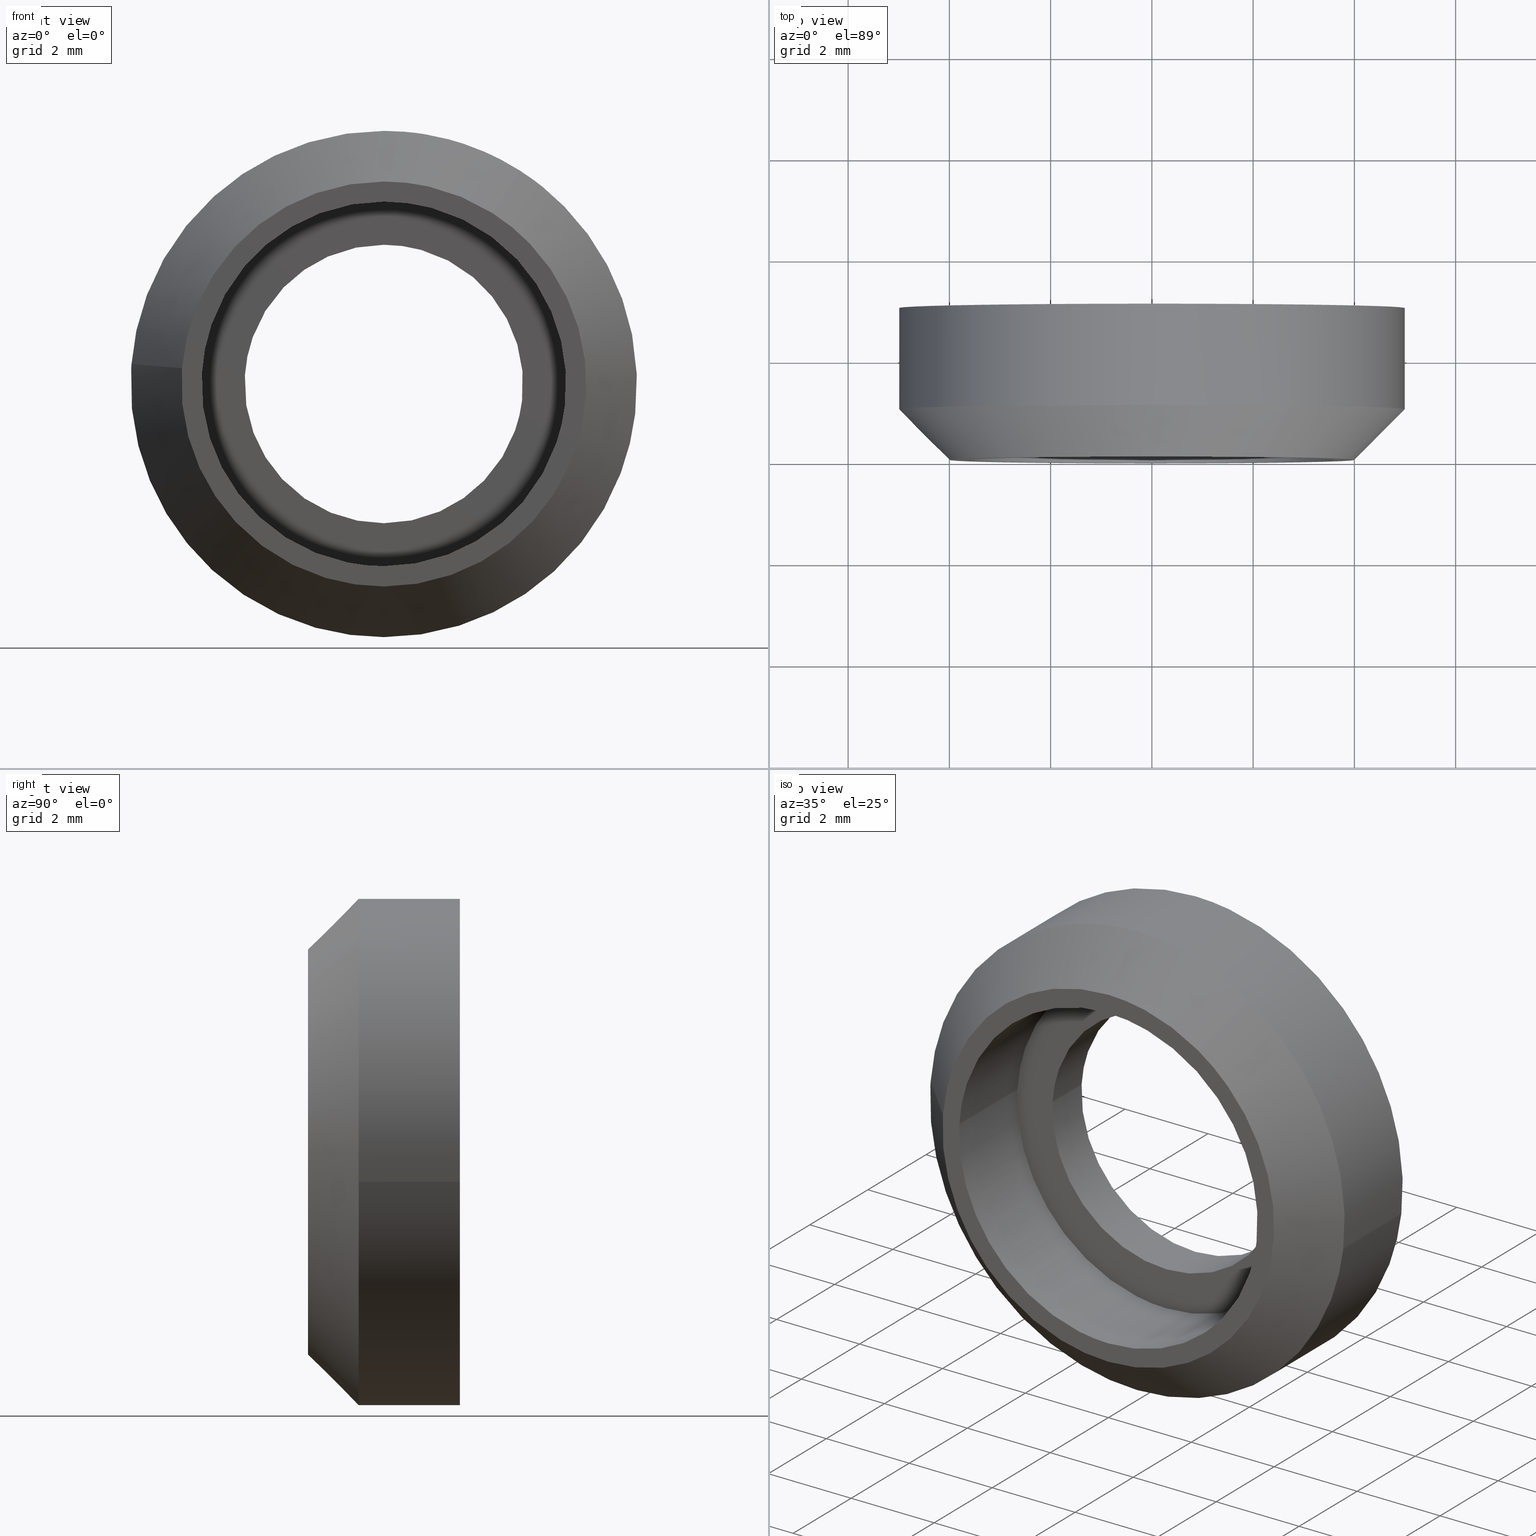
[diagram: canonical four-view strip — front | top / right | iso, engineering-drawing reading convention]
A machine part, canonical four-view strip (front | top / right | iso — engineering-drawing reading convention). The complete STEP part file that produces these views, byte-faithful:
ISO-10303-21;
HEADER;
/****************************************************************
 * Generated by software with PDE/Lib inside                    *
 * PDElib Version 4.4.1-0003, patched  Thursday August 19 11:58 *
 * International Technegroup Inc. (www.iti-oh.com)              *
 ****************************************************************/
FILE_DESCRIPTION((''),'2;1');
FILE_NAME('','2005-10-12T11:50:16',(''),(''),'','CADfix','');
FILE_SCHEMA(('AUTOMOTIVE_DESIGN'));
ENDSEC;
DATA;
#5=APPLICATION_CONTEXT('automotive design');
#6=APPLICATION_PROTOCOL_DEFINITION('Draft International Standard','automotive_design',1998,#5);
#7=PRODUCT_CONTEXT('None',#5,'mechanical');
#8=PRODUCT('facing ring','','None',(#7));
#9=PRODUCT_RELATED_PRODUCT_CATEGORY('part','description',(#8));
#10=PRODUCT_DEFINITION_FORMATION('None','None',#8);
#11=PRODUCT_DEFINITION_CONTEXT('part definition',#5,'design');
#12=PRODUCT_DEFINITION('None','None',#10,#11);
#18=(NAMED_UNIT(*)PLANE_ANGLE_UNIT()SI_UNIT($,.RADIAN.));
#19=DIMENSIONAL_EXPONENTS(0.0,0.0,0.0,0.0,0.0,0.0,0.0);
#20=PLANE_ANGLE_MEASURE_WITH_UNIT(PLANE_ANGLE_MEASURE(0.017453292500000),#18);
#24=(CONVERSION_BASED_UNIT('DEGREE',#20)NAMED_UNIT(#19)PLANE_ANGLE_UNIT());
#28=(NAMED_UNIT(*)SI_UNIT($,.STERADIAN.)SOLID_ANGLE_UNIT());
#32=(LENGTH_UNIT()NAMED_UNIT(*)SI_UNIT(.MILLI.,.METRE.));
#34=UNCERTAINTY_MEASURE_WITH_UNIT(LENGTH_MEASURE(0.001000000000000),#32,'DISTANCE_ACCURACY_VALUE','');
#36=(GEOMETRIC_REPRESENTATION_CONTEXT(3)GLOBAL_UNCERTAINTY_ASSIGNED_CONTEXT((#34))GLOBAL_UNIT_ASSIGNED_CONTEXT((#24,#28,#32))REPRESENTATION_CONTEXT('None','None'));
#37=AXIS2_PLACEMENT_3D('',#38,#39,#40);
#38=CARTESIAN_POINT('',(0.0,0.0,0.0));
#39=DIRECTION('',(0.0,0.0,1.0));
#40=DIRECTION('',(1.0,0.0,0.0));
#41=ADVANCED_BREP_SHAPE_REPRESENTATION('',(#37,#815),#36);
#42=PRODUCT_DEFINITION_SHAPE('','',#12);
#43=SHAPE_DEFINITION_REPRESENTATION(#42,#41);
#44=CARTESIAN_POINT('',(2.730776197500084,1.025000000000000,-0.324594145306086));
#45=CARTESIAN_POINT('',(2.740065942483667,1.025000000000000,-0.246440503754439));
#46=CARTESIAN_POINT('',(2.744870695660134,1.025000000000000,-0.167883483720857));
#47=CARTESIAN_POINT('',(2.912754179380990,1.025000000000000,2.576987211939278));
#48=CARTESIAN_POINT('',(0.167883483720857,1.025000000000000,2.744870695660134));
#49=CARTESIAN_POINT('',(-2.576987211939278,1.025000000000000,2.912754179380990));
#50=CARTESIAN_POINT('',(-2.744870695660133,1.025000000000000,0.167883483720857));
#51=CARTESIAN_POINT('',(2.730776197500084,-0.025625000000000,-0.324594145306086));
#52=CARTESIAN_POINT('',(2.740065942483667,-0.025625000000000,-0.246440503754439));
#53=CARTESIAN_POINT('',(2.744870695660134,-0.025625000000000,-0.167883483720857));
#54=CARTESIAN_POINT('',(2.912754179380990,-0.025625000000000,2.576987211939278));
#55=CARTESIAN_POINT('',(0.167883483720857,-0.025625000000000,2.744870695660134));
#56=CARTESIAN_POINT('',(-2.576987211939278,-0.025625000000000,2.912754179380990));
#57=CARTESIAN_POINT('',(-2.744870695660133,-0.025625000000000,0.167883483720857));
#65=(BOUNDED_SURFACE()B_SPLINE_SURFACE(2,1,((#44,#51),(#45,#52),(#46,#53),(#47,#54),(#48,#55),(#49,#56),(#50,#57)),.UNSPECIFIED.,.F.,.F.,.U.)B_SPLINE_SURFACE_WITH_KNOTS((3,2,2,3),(2,2),(0.0,0.182253967444162,4.738603153548208,9.294952339652255),(0.0,1.0),.UNSPECIFIED.)GEOMETRIC_REPRESENTATION_ITEM()RATIONAL_B_SPLINE_SURFACE(((0.977505800795127,0.977505800795127),(0.988284271247462,0.988284271247462),(1.0,1.0),(0.707106781186548,0.707106781186548),(1.0,1.0),(0.707106781186548,0.707106781186548),(1.0,1.0)))REPRESENTATION_ITEM('')SURFACE());
#66=CARTESIAN_POINT('',(2.730776418423933,1.000000000000025,-0.324592286686328));
#67=VERTEX_POINT('',#66);
#68=CARTESIAN_POINT('',(4.898425E-016,1.0,2.750000000000000));
#69=VERTEX_POINT('',#68);
#70=CARTESIAN_POINT('',(2.730776418423933,1.000000000000025,-0.324592286686328));
#71=CARTESIAN_POINT('',(2.750000000000001,1.0,-0.162865389908423));
#72=CARTESIAN_POINT('',(2.750000000000000,1.0,0.0));
#73=CARTESIAN_POINT('',(2.750000000000000,1.0,2.750000000000000));
#74=CARTESIAN_POINT('',(4.898425E-016,1.0,2.750000000000000));
#82=(BOUNDED_CURVE()B_SPLINE_CURVE(2,(#70,#71,#72,#73,#74),.UNSPECIFIED.,.F.,.U.)B_SPLINE_CURVE_WITH_KNOTS((3,2,3),(0.229562588542570,0.250000000000000,0.500000000000000),.UNSPECIFIED.)CURVE()GEOMETRIC_REPRESENTATION_ITEM()RATIONAL_B_SPLINE_CURVE((0.956026979645492,0.976056083096074,1.0,0.707106781186548,1.0))REPRESENTATION_ITEM(''));
#83=EDGE_CURVE('',#67,#69,#82,.T.);
#84=ORIENTED_EDGE('',*,*,#83,.F.);
#85=CARTESIAN_POINT('',(2.730776415759834,5.323928E-018,-0.324592309099363));
#86=VERTEX_POINT('',#85);
#87=CARTESIAN_POINT('',(2.730776418423933,1.000000000000025,-0.324592286686328));
#88=CARTESIAN_POINT('',(2.730776415759834,5.323928E-018,-0.324592309099363));
#89=QUASI_UNIFORM_CURVE('',1,(#87,#88),.UNSPECIFIED.,.F.,.U.);
#90=EDGE_CURVE('',#67,#86,#89,.T.);
#91=ORIENTED_EDGE('',*,*,#90,.T.);
#92=CARTESIAN_POINT('',(4.898425E-016,0.0,2.750000000000000));
#93=VERTEX_POINT('',#92);
#94=CARTESIAN_POINT('',(2.730776415759835,5.323928E-018,-0.324592309099363));
#95=CARTESIAN_POINT('',(2.750000000000000,0.0,-0.162865401233412));
#96=CARTESIAN_POINT('',(2.750000000000000,0.0,0.0));
#97=CARTESIAN_POINT('',(2.750000000000000,0.0,2.750000000000000));
#98=CARTESIAN_POINT('',(4.898425E-016,0.0,2.750000000000000));
#106=(BOUNDED_CURVE()B_SPLINE_CURVE(2,(#94,#95,#96,#97,#98),.UNSPECIFIED.,.F.,.U.)B_SPLINE_CURVE_WITH_KNOTS((3,2,3),(0.229562587155464,0.250000000000000,0.500000000000000),.UNSPECIFIED.)CURVE()GEOMETRIC_REPRESENTATION_ITEM()RATIONAL_B_SPLINE_CURVE((0.956026976926705,0.976056081470978,1.0,0.707106781186548,1.0))REPRESENTATION_ITEM(''));
#107=EDGE_CURVE('',#86,#93,#106,.T.);
#108=ORIENTED_EDGE('',*,*,#107,.T.);
#109=CARTESIAN_POINT('',(-2.744870870186102,-5.204170E-017,0.167880630197805));
#110=VERTEX_POINT('',#109);
#111=CARTESIAN_POINT('',(4.898425E-016,0.0,2.750000000000000));
#112=CARTESIAN_POINT('',(-2.586944378359961,0.0,2.750000000000000));
#113=CARTESIAN_POINT('',(-2.744870870186103,-5.204170E-017,0.167880630197805));
#121=(BOUNDED_CURVE()B_SPLINE_CURVE(2,(#111,#112,#113),.UNSPECIFIED.,.F.,.U.)B_SPLINE_CURVE_WITH_KNOTS((3,3),(0.500000000000000,0.739333141618836),.UNSPECIFIED.)CURVE()GEOMETRIC_REPRESENTATION_ITEM()RATIONAL_B_SPLINE_CURVE((1.0,0.719603783130093,0.976072426112277))REPRESENTATION_ITEM(''));
#122=EDGE_CURVE('',#93,#110,#121,.T.);
#123=ORIENTED_EDGE('',*,*,#122,.T.);
#124=CARTESIAN_POINT('',(-2.744870872313038,0.999999999999963,0.167880595421523));
#125=VERTEX_POINT('',#124);
#126=CARTESIAN_POINT('',(-2.744870872313038,0.999999999999963,0.167880595421523));
#127=CARTESIAN_POINT('',(-2.744870870186102,-5.204170E-017,0.167880630197805));
#128=QUASI_UNIFORM_CURVE('',1,(#126,#127),.UNSPECIFIED.,.F.,.U.);
#129=EDGE_CURVE('',#125,#110,#128,.T.);
#130=ORIENTED_EDGE('',*,*,#129,.F.);
#131=CARTESIAN_POINT('',(4.898425E-016,1.0,2.750000000000000));
#132=CARTESIAN_POINT('',(-2.586944411196626,1.0,2.750000000000001));
#133=CARTESIAN_POINT('',(-2.744870872313038,0.999999999999963,0.167880595421523));
#141=(BOUNDED_CURVE()B_SPLINE_CURVE(2,(#131,#132,#133),.UNSPECIFIED.,.F.,.U.)B_SPLINE_CURVE_WITH_KNOTS((3,3),(0.500000000000000,0.739333143804927),.UNSPECIFIED.)CURVE()GEOMETRIC_REPRESENTATION_ITEM()RATIONAL_B_SPLINE_CURVE((1.0,0.719603780568928,0.976072430797494))REPRESENTATION_ITEM(''));
#142=EDGE_CURVE('',#69,#125,#141,.T.);
#143=ORIENTED_EDGE('',*,*,#142,.F.);
#144=EDGE_LOOP('',(#84,#91,#108,#123,#130,#143));
#145=FACE_OUTER_BOUND('',#144,.T.);
#146=ADVANCED_FACE('',(#145),#65,.F.);
#147=CARTESIAN_POINT('',(-2.744870695660133,1.025000000000000,0.167883483720857));
#148=CARTESIAN_POINT('',(-2.912754179380989,1.025000000000000,-2.576987211939278));
#149=CARTESIAN_POINT('',(-0.167883483720856,1.025000000000000,-2.744870695660134));
#150=CARTESIAN_POINT('',(2.424244599808629,1.025000000000000,-2.903412041014450));
#151=CARTESIAN_POINT('',(2.730776197500084,1.025000000000000,-0.324594145306086));
#152=CARTESIAN_POINT('',(-2.744870695660133,-0.025625000000000,0.167883483720857));
#153=CARTESIAN_POINT('',(-2.912754179380989,-0.025625000000000,-2.576987211939278));
#154=CARTESIAN_POINT('',(-0.167883483720856,-0.025625000000000,-2.744870695660134));
#155=CARTESIAN_POINT('',(2.424244599808629,-0.025625000000000,-2.903412041014450));
#156=CARTESIAN_POINT('',(2.730776197500084,-0.025625000000000,-0.324594145306086));
#164=(BOUNDED_SURFACE()B_SPLINE_SURFACE(2,1,((#147,#152),(#148,#153),(#149,#154),(#150,#155),(#151,#156)),.UNSPECIFIED.,.F.,.F.,.U.)B_SPLINE_SURFACE_WITH_KNOTS((3,2,3),(2,2),(0.0,4.556349186104045,8.930444404763927),(0.0,1.0),.UNSPECIFIED.)GEOMETRIC_REPRESENTATION_ITEM()RATIONAL_B_SPLINE_SURFACE(((1.0,1.0),(0.707106781186548,0.707106781186548),(1.0,1.0),(0.718822509939086,0.718822509939086),(0.977505800795127,0.977505800795127)))REPRESENTATION_ITEM('')SURFACE());
#165=CARTESIAN_POINT('',(4.898425E-016,1.0,-2.750000000000000));
#166=VERTEX_POINT('',#165);
#167=CARTESIAN_POINT('',(4.898425E-016,1.0,-2.750000000000000));
#168=CARTESIAN_POINT('',(2.442481620469085,1.0,-2.750000000000000));
#169=CARTESIAN_POINT('',(2.730776418423933,1.000000000000025,-0.324592286686328));
#177=(BOUNDED_CURVE()B_SPLINE_CURVE(2,(#167,#168,#169),.UNSPECIFIED.,.F.,.U.)B_SPLINE_CURVE_WITH_KNOTS((3,3),(0.0,0.229562588542570),.UNSPECIFIED.)CURVE()GEOMETRIC_REPRESENTATION_ITEM()RATIONAL_B_SPLINE_CURVE((1.0,0.731050698090474,0.956026979645492))REPRESENTATION_ITEM(''));
#178=EDGE_CURVE('',#166,#67,#177,.T.);
#179=ORIENTED_EDGE('',*,*,#178,.F.);
#180=CARTESIAN_POINT('',(-2.744870872313038,0.999999999999963,0.167880595421523));
#181=CARTESIAN_POINT('',(-2.750000000000000,1.0,0.084018650872314));
#182=CARTESIAN_POINT('',(-2.750000000000000,1.0,0.0));
#183=CARTESIAN_POINT('',(-2.749999999999999,1.0,-2.750000000000000));
#184=CARTESIAN_POINT('',(4.898425E-016,1.0,-2.750000000000000));
#192=(BOUNDED_CURVE()B_SPLINE_CURVE(2,(#180,#181,#182,#183,#184),.UNSPECIFIED.,.F.,.U.)B_SPLINE_CURVE_WITH_KNOTS((3,2,3),(0.739333143804927,0.750000000000000,1.0),.UNSPECIFIED.)CURVE()GEOMETRIC_REPRESENTATION_ITEM()RATIONAL_B_SPLINE_CURVE((0.976072430797494,0.987503000617620,1.0,0.707106781186548,1.0))REPRESENTATION_ITEM(''));
#193=EDGE_CURVE('',#125,#166,#192,.T.);
#194=ORIENTED_EDGE('',*,*,#193,.F.);
#195=ORIENTED_EDGE('',*,*,#129,.T.);
#196=CARTESIAN_POINT('',(4.898425E-016,0.0,-2.750000000000000));
#197=VERTEX_POINT('',#196);
#198=CARTESIAN_POINT('',(-2.744870870186103,-5.204170E-017,0.167880630197805));
#199=CARTESIAN_POINT('',(-2.749999999999999,0.0,0.084018668309206));
#200=CARTESIAN_POINT('',(-2.750000000000000,0.0,0.0));
#201=CARTESIAN_POINT('',(-2.749999999999999,0.0,-2.750000000000000));
#202=CARTESIAN_POINT('',(4.898425E-016,0.0,-2.750000000000000));
#210=(BOUNDED_CURVE()B_SPLINE_CURVE(2,(#198,#199,#200,#201,#202),.UNSPECIFIED.,.F.,.U.)B_SPLINE_CURVE_WITH_KNOTS((3,2,3),(0.739333141618836,0.750000000000000,1.0),.UNSPECIFIED.)CURVE()GEOMETRIC_REPRESENTATION_ITEM()RATIONAL_B_SPLINE_CURVE((0.976072426112277,0.987502998056455,1.0,0.707106781186548,1.0))REPRESENTATION_ITEM(''));
#211=EDGE_CURVE('',#110,#197,#210,.T.);
#212=ORIENTED_EDGE('',*,*,#211,.T.);
#213=CARTESIAN_POINT('',(4.898425E-016,0.0,-2.750000000000000));
#214=CARTESIAN_POINT('',(2.442481600281129,0.0,-2.750000000000000));
#215=CARTESIAN_POINT('',(2.730776415759835,5.323928E-018,-0.324592309099363));
#223=(BOUNDED_CURVE()B_SPLINE_CURVE(2,(#213,#214,#215),.UNSPECIFIED.,.F.,.U.)B_SPLINE_CURVE_WITH_KNOTS((3,3),(0.0,0.229562587155464),.UNSPECIFIED.)CURVE()GEOMETRIC_REPRESENTATION_ITEM()RATIONAL_B_SPLINE_CURVE((1.0,0.731050699715569,0.956026976926705))REPRESENTATION_ITEM(''));
#224=EDGE_CURVE('',#197,#86,#223,.T.);
#225=ORIENTED_EDGE('',*,*,#224,.T.);
#226=ORIENTED_EDGE('',*,*,#90,.F.);
#227=EDGE_LOOP('',(#179,#194,#195,#212,#225,#226));
#228=FACE_OUTER_BOUND('',#227,.T.);
#229=ADVANCED_FACE('',(#228),#164,.F.);
#230=CARTESIAN_POINT('',(3.574834294909198,0.050000000000000,-0.424923244764331));
#231=CARTESIAN_POINT('',(3.586995415614981,0.050000000000000,-0.322613023096720));
#232=CARTESIAN_POINT('',(3.593285274318721,0.050000000000000,-0.219774742325485));
#233=CARTESIAN_POINT('',(3.813060016644206,0.050000000000000,3.373510531993235));
#234=CARTESIAN_POINT('',(0.219774742325486,0.050000000000000,3.593285274318720));
#235=CARTESIAN_POINT('',(-3.373510531993235,0.050000000000000,3.813060016644206));
#236=CARTESIAN_POINT('',(-3.593285274318720,0.050000000000000,0.219774742325485));
#237=CARTESIAN_POINT('',(3.574834294909198,-2.051250000000001,-0.424923244764331));
#238=CARTESIAN_POINT('',(3.586995415614981,-2.051250000000000,-0.322613023096720));
#239=CARTESIAN_POINT('',(3.593285274318721,-2.051250000000000,-0.219774742325485));
#240=CARTESIAN_POINT('',(3.813060016644206,-2.051250000000001,3.373510531993235));
#241=CARTESIAN_POINT('',(0.219774742325486,-2.051250000000000,3.593285274318720));
#242=CARTESIAN_POINT('',(-3.373510531993235,-2.051250000000001,3.813060016644206));
#243=CARTESIAN_POINT('',(-3.593285274318720,-2.051250000000000,0.219774742325485));
#251=(BOUNDED_SURFACE()B_SPLINE_SURFACE(2,1,((#230,#237),(#231,#238),(#232,#239),(#233,#240),(#234,#241),(#235,#242),(#236,#243)),.UNSPECIFIED.,.F.,.F.,.U.)B_SPLINE_SURFACE_WITH_KNOTS((3,2,2,3),(2,2),(0.0,0.238587011926903,6.203262310099472,12.167937608272039),(0.0,2.101250000000000),.UNSPECIFIED.)GEOMETRIC_REPRESENTATION_ITEM()RATIONAL_B_SPLINE_SURFACE(((0.977505800795127,0.977505800795127),(0.988284271247462,0.988284271247462),(1.0,1.0),(0.707106781186548,0.707106781186548),(1.0,1.0),(0.707106781186548,0.707106781186548),(1.0,1.0)))REPRESENTATION_ITEM('')SURFACE());
#252=CARTESIAN_POINT('',(3.574834407510444,-3.545736E-015,-0.424922297459830));
#253=VERTEX_POINT('',#252);
#254=CARTESIAN_POINT('',(4.898425E-016,0.0,3.600000000000000));
#255=VERTEX_POINT('',#254);
#256=CARTESIAN_POINT('',(3.574834407510443,-3.545736E-015,-0.424922297459830));
#257=CARTESIAN_POINT('',(3.600000000000000,0.0,-0.213205873427639));
#258=CARTESIAN_POINT('',(3.600000000000001,0.0,0.0));
#259=CARTESIAN_POINT('',(3.600000000000000,0.0,3.600000000000000));
#260=CARTESIAN_POINT('',(4.898425E-016,0.0,3.600000000000000));
#268=(BOUNDED_CURVE()B_SPLINE_CURVE(2,(#256,#257,#258,#259,#260),.UNSPECIFIED.,.F.,.U.)B_SPLINE_CURVE_WITH_KNOTS((3,2,3),(0.229562563084858,0.250000000000000,0.500000000000000),.UNSPECIFIED.)CURVE()GEOMETRIC_REPRESENTATION_ITEM()RATIONAL_B_SPLINE_CURVE((0.956026929747286,0.976056053270509,1.0,0.707106781186547,1.0))REPRESENTATION_ITEM(''));
#269=EDGE_CURVE('',#253,#255,#268,.T.);
#270=ORIENTED_EDGE('',*,*,#269,.F.);
#271=CARTESIAN_POINT('',(3.574834406155133,-2.0,-0.424922308861975));
#272=VERTEX_POINT('',#271);
#273=CARTESIAN_POINT('',(3.574834407510444,-3.545736E-015,-0.424922297459830));
#274=CARTESIAN_POINT('',(3.574834406155133,-2.0,-0.424922308861975));
#275=QUASI_UNIFORM_CURVE('',1,(#273,#274),.UNSPECIFIED.,.F.,.U.);
#276=EDGE_CURVE('',#253,#272,#275,.T.);
#277=ORIENTED_EDGE('',*,*,#276,.T.);
#278=CARTESIAN_POINT('',(4.898425E-016,-2.0,3.600000000000000));
#279=VERTEX_POINT('',#278);
#280=CARTESIAN_POINT('',(3.574834406155132,-2.000000000000000,-0.424922308861975));
#281=CARTESIAN_POINT('',(3.600000000000001,-2.000000000000000,-0.213205884950325));
#282=CARTESIAN_POINT('',(3.600000000000001,-2.0,0.0));
#283=CARTESIAN_POINT('',(3.600000000000000,-2.0,3.600000000000000));
#284=CARTESIAN_POINT('',(4.898425E-016,-2.0,3.600000000000000));
#292=(BOUNDED_CURVE()B_SPLINE_CURVE(2,(#280,#281,#282,#283,#284),.UNSPECIFIED.,.F.,.U.)B_SPLINE_CURVE_WITH_KNOTS((3,2,3),(0.229562562006767,0.250000000000000,0.500000000000000),.UNSPECIFIED.)CURVE()GEOMETRIC_REPRESENTATION_ITEM()RATIONAL_B_SPLINE_CURVE((0.956026927634180,0.976056052007446,1.0,0.707106781186547,1.0))REPRESENTATION_ITEM(''));
#293=EDGE_CURVE('',#272,#279,#292,.T.);
#294=ORIENTED_EDGE('',*,*,#293,.T.);
#295=CARTESIAN_POINT('',(-3.593285493808216,-2.0,0.219771153645120));
#296=VERTEX_POINT('',#295);
#297=CARTESIAN_POINT('',(4.898425E-016,-2.0,3.600000000000000));
#298=CARTESIAN_POINT('',(-3.386545229384042,-2.000000000000000,3.600000000000000));
#299=CARTESIAN_POINT('',(-3.593285493808216,-1.999999999999999,0.219771153645120));
#307=(BOUNDED_CURVE()B_SPLINE_CURVE(2,(#297,#298,#299),.UNSPECIFIED.,.F.,.U.)B_SPLINE_CURVE_WITH_KNOTS((3,3),(0.500000000000000,0.739333134567656),.UNSPECIFIED.)CURVE()GEOMETRIC_REPRESENTATION_ITEM()RATIONAL_B_SPLINE_CURVE((1.0,0.719603791391064,0.976072411000232))REPRESENTATION_ITEM(''));
#308=EDGE_CURVE('',#279,#296,#307,.T.);
#309=ORIENTED_EDGE('',*,*,#308,.T.);
#310=CARTESIAN_POINT('',(-3.593285496484431,-7.393391E-015,0.219771109887959));
#311=VERTEX_POINT('',#310);
#312=CARTESIAN_POINT('',(-3.593285496484431,-7.393391E-015,0.219771109887959));
#313=CARTESIAN_POINT('',(-3.593285493808216,-2.0,0.219771153645120));
#314=QUASI_UNIFORM_CURVE('',1,(#312,#313),.UNSPECIFIED.,.F.,.U.);
#315=EDGE_CURVE('',#311,#296,#314,.T.);
#316=ORIENTED_EDGE('',*,*,#315,.F.);
#317=CARTESIAN_POINT('',(4.898425E-016,0.0,3.600000000000000));
#318=CARTESIAN_POINT('',(-3.386545270700687,0.0,3.600000000000001));
#319=CARTESIAN_POINT('',(-3.593285496484431,-7.393391E-015,0.219771109887959));
#327=(BOUNDED_CURVE()B_SPLINE_CURVE(2,(#317,#318,#319),.UNSPECIFIED.,.F.,.U.)B_SPLINE_CURVE_WITH_KNOTS((3,3),(0.500000000000000,0.739333136668842),.UNSPECIFIED.)CURVE()GEOMETRIC_REPRESENTATION_ITEM()RATIONAL_B_SPLINE_CURVE((1.0,0.719603788929372,0.976072415503480))REPRESENTATION_ITEM(''));
#328=EDGE_CURVE('',#255,#311,#327,.T.);
#329=ORIENTED_EDGE('',*,*,#328,.F.);
#330=EDGE_LOOP('',(#270,#277,#294,#309,#316,#329));
#331=FACE_OUTER_BOUND('',#330,.T.);
#332=ADVANCED_FACE('',(#331),#251,.F.);
#333=CARTESIAN_POINT('',(-3.593285274318720,0.050000000000000,0.219774742325485));
#334=CARTESIAN_POINT('',(-3.813060016644205,0.050000000000000,-3.373510531993235));
#335=CARTESIAN_POINT('',(-0.219774742325485,0.050000000000000,-3.593285274318720));
#336=CARTESIAN_POINT('',(3.173556567022204,0.050000000000000,-3.800830308237098));
#337=CARTESIAN_POINT('',(3.574834294909198,0.050000000000000,-0.424923244764331));
#338=CARTESIAN_POINT('',(-3.593285274318720,-2.051250000000000,0.219774742325485));
#339=CARTESIAN_POINT('',(-3.813060016644205,-2.051250000000001,-3.373510531993235));
#340=CARTESIAN_POINT('',(-0.219774742325485,-2.051250000000000,-3.593285274318720));
#341=CARTESIAN_POINT('',(3.173556567022204,-2.051250000000001,-3.800830308237098));
#342=CARTESIAN_POINT('',(3.574834294909198,-2.051250000000001,-0.424923244764331));
#350=(BOUNDED_SURFACE()B_SPLINE_SURFACE(2,1,((#333,#338),(#334,#339),(#335,#340),(#336,#341),(#337,#342)),.UNSPECIFIED.,.F.,.F.,.U.)B_SPLINE_SURFACE_WITH_KNOTS((3,2,3),(2,2),(0.0,5.964675298172567,11.690763584418230),(0.0,2.101250000000000),.UNSPECIFIED.)GEOMETRIC_REPRESENTATION_ITEM()RATIONAL_B_SPLINE_SURFACE(((1.0,1.0),(0.707106781186548,0.707106781186548),(1.0,1.0),(0.718822509939086,0.718822509939086),(0.977505800795127,0.977505800795127)))REPRESENTATION_ITEM('')SURFACE());
#351=CARTESIAN_POINT('',(4.898425E-016,0.0,-3.600000000000000));
#352=VERTEX_POINT('',#351);
#353=CARTESIAN_POINT('',(4.898425E-016,0.0,-3.600000000000000));
#354=CARTESIAN_POINT('',(3.197429999944082,0.0,-3.600000000000001));
#355=CARTESIAN_POINT('',(3.574834407510444,-3.545736E-015,-0.424922297459830));
#363=(BOUNDED_CURVE()B_SPLINE_CURVE(2,(#353,#354,#355),.UNSPECIFIED.,.F.,.U.)B_SPLINE_CURVE_WITH_KNOTS((3,3),(0.0,0.229562563084858),.UNSPECIFIED.)CURVE()GEOMETRIC_REPRESENTATION_ITEM()RATIONAL_B_SPLINE_CURVE((1.0,0.731050727916038,0.956026929747286))REPRESENTATION_ITEM(''));
#364=EDGE_CURVE('',#352,#253,#363,.T.);
#365=ORIENTED_EDGE('',*,*,#364,.F.);
#366=CARTESIAN_POINT('',(-3.593285496484431,-7.393391E-015,0.219771109887959));
#367=CARTESIAN_POINT('',(-3.600000000000000,0.0,0.109988126563798));
#368=CARTESIAN_POINT('',(-3.600000000000000,0.0,0.0));
#369=CARTESIAN_POINT('',(-3.600000000000000,0.0,-3.600000000000000));
#370=CARTESIAN_POINT('',(4.898425E-016,0.0,-3.600000000000000));
#378=(BOUNDED_CURVE()B_SPLINE_CURVE(2,(#366,#367,#368,#369,#370),.UNSPECIFIED.,.F.,.U.)B_SPLINE_CURVE_WITH_KNOTS((3,2,3),(0.739333136668842,0.750000000000000,1.0),.UNSPECIFIED.)CURVE()GEOMETRIC_REPRESENTATION_ITEM()RATIONAL_B_SPLINE_CURVE((0.976072415503480,0.987502992257175,1.0,0.707106781186547,1.0))REPRESENTATION_ITEM(''));
#379=EDGE_CURVE('',#311,#352,#378,.T.);
#380=ORIENTED_EDGE('',*,*,#379,.F.);
#381=ORIENTED_EDGE('',*,*,#315,.T.);
#382=CARTESIAN_POINT('',(4.898425E-016,-2.0,-3.600000000000000));
#383=VERTEX_POINT('',#382);
#384=CARTESIAN_POINT('',(-3.593285493808216,-1.999999999999999,0.219771153645120));
#385=CARTESIAN_POINT('',(-3.600000000000000,-2.000000000000000,0.109988148503720));
#386=CARTESIAN_POINT('',(-3.600000000000000,-2.0,0.0));
#387=CARTESIAN_POINT('',(-3.600000000000000,-2.0,-3.600000000000000));
#388=CARTESIAN_POINT('',(4.898425E-016,-2.0,-3.600000000000000));
#396=(BOUNDED_CURVE()B_SPLINE_CURVE(2,(#384,#385,#386,#387,#388),.UNSPECIFIED.,.F.,.U.)B_SPLINE_CURVE_WITH_KNOTS((3,2,3),(0.739333134567656,0.750000000000000,1.0),.UNSPECIFIED.)CURVE()GEOMETRIC_REPRESENTATION_ITEM()RATIONAL_B_SPLINE_CURVE((0.976072411000232,0.987502989795483,1.0,0.707106781186547,1.0))REPRESENTATION_ITEM(''));
#397=EDGE_CURVE('',#296,#383,#396,.T.);
#398=ORIENTED_EDGE('',*,*,#397,.T.);
#399=CARTESIAN_POINT('',(4.898425E-016,-2.0,-3.600000000000000));
#400=CARTESIAN_POINT('',(3.197429979403713,-2.0,-3.600000000000001));
#401=CARTESIAN_POINT('',(3.574834406155132,-2.000000000000000,-0.424922308861975));
#409=(BOUNDED_CURVE()B_SPLINE_CURVE(2,(#399,#400,#401),.UNSPECIFIED.,.F.,.U.)B_SPLINE_CURVE_WITH_KNOTS((3,3),(0.0,0.229562562006767),.UNSPECIFIED.)CURVE()GEOMETRIC_REPRESENTATION_ITEM()RATIONAL_B_SPLINE_CURVE((1.0,0.731050729179102,0.956026927634180))REPRESENTATION_ITEM(''));
#410=EDGE_CURVE('',#383,#272,#409,.T.);
#411=ORIENTED_EDGE('',*,*,#410,.T.);
#412=ORIENTED_EDGE('',*,*,#276,.F.);
#413=EDGE_LOOP('',(#365,#380,#381,#398,#411,#412));
#414=FACE_OUTER_BOUND('',#413,.T.);
#415=ADVANCED_FACE('',(#414),#350,.F.);
#416=CARTESIAN_POINT('',(2.137956903948658,-2.025000000000000,3.351084194235985));
#417=CARTESIAN_POINT('',(4.150001045183442,-2.025000000000000,2.067420933789887));
#418=CARTESIAN_POINT('',(3.962746401589181,-2.025000000000000,-0.311874905518186));
#419=CARTESIAN_POINT('',(3.650871496070995,-2.025000000000000,-4.274621307107368));
#420=CARTESIAN_POINT('',(-0.311874905518185,-2.025000000000000,-3.962746401589181));
#421=CARTESIAN_POINT('',(-4.274621307107365,-2.025000000000000,-3.650871496070994));
#422=CARTESIAN_POINT('',(-3.962746401589180,-2.025000000000000,0.311874905518186));
#423=CARTESIAN_POINT('',(2.703036393813077,-0.974375000000000,4.236803145574145));
#424=CARTESIAN_POINT('',(5.246880252251582,-0.974375000000000,2.613857190032152));
#425=CARTESIAN_POINT('',(5.010132675342550,-0.974375000000000,-0.394305992967254));
#426=CARTESIAN_POINT('',(4.615826682375297,-0.974375000000000,-5.404438668309802));
#427=CARTESIAN_POINT('',(-0.394305992967253,-0.974375000000000,-5.010132675342550));
#428=CARTESIAN_POINT('',(-5.404438668309802,-0.974375000000000,-4.615826682375296));
#429=CARTESIAN_POINT('',(-5.010132675342549,-0.974375000000000,0.394305992967254));
#437=(BOUNDED_SURFACE()B_SPLINE_SURFACE(2,1,((#416,#423),(#417,#424),(#418,#425),(#419,#426),(#420,#427),(#421,#428),(#422,#429)),.UNSPECIFIED.,.F.,.F.,.U.)B_SPLINE_SURFACE_WITH_KNOTS((3,2,2,3),(2,2),(0.0,5.662175133571495,13.988903271176641,22.315631408781769),(0.0,1.0),.UNSPECIFIED.)GEOMETRIC_REPRESENTATION_ITEM()RATIONAL_B_SPLINE_SURFACE(((0.872532871172386,0.872532871172386),(0.800832611206852,0.800832611206852),(1.0,1.0),(0.707106781186548,0.707106781186548),(1.0,1.0),(0.707106781186548,0.707106781186548),(1.0,1.0)))REPRESENTATION_ITEM('')SURFACE());
#438=CARTESIAN_POINT('',(4.965048002999415,-1.000000000000000,-0.590168050559857));
#439=VERTEX_POINT('',#438);
#440=CARTESIAN_POINT('',(2.689253967231708,-0.999999999999958,4.215200244321606));
#441=VERTEX_POINT('',#440);
#442=CARTESIAN_POINT('',(4.965048002999415,-1.000000000000000,-0.590168050559856));
#443=CARTESIAN_POINT('',(5.000000000000001,-1.0,-0.296119020391211));
#444=CARTESIAN_POINT('',(5.000000000000001,-1.0,0.0));
#445=CARTESIAN_POINT('',(5.000000000000002,-1.0,2.740968280072530));
#446=CARTESIAN_POINT('',(2.689253967231708,-0.999999999999958,4.215200244321607));
#454=(BOUNDED_CURVE()B_SPLINE_CURVE(2,(#442,#443,#444,#445,#446),.UNSPECIFIED.,.F.,.U.)B_SPLINE_CURVE_WITH_KNOTS((3,2,3),(0.229562579808786,0.250000000000000,0.407950112627522),.UNSPECIFIED.)CURVE()GEOMETRIC_REPRESENTATION_ITEM()RATIONAL_B_SPLINE_CURVE((0.956026962526900,0.976056072863809,1.0,0.814949932402312,0.863729296954906))REPRESENTATION_ITEM(''));
#455=EDGE_CURVE('',#439,#441,#454,.T.);
#456=ORIENTED_EDGE('',*,*,#455,.T.);
#457=CARTESIAN_POINT('',(2.151403173784936,-1.999999999999992,3.372160195457528));
#458=VERTEX_POINT('',#457);
#459=CARTESIAN_POINT('',(2.151403173784936,-1.999999999999992,3.372160195457528));
#460=CARTESIAN_POINT('',(2.689253967231708,-0.999999999999958,4.215200244321606));
#461=QUASI_UNIFORM_CURVE('',1,(#459,#460),.UNSPECIFIED.,.F.,.U.);
#462=EDGE_CURVE('',#458,#441,#461,.T.);
#463=ORIENTED_EDGE('',*,*,#462,.F.);
#464=CARTESIAN_POINT('',(4.898425E-016,-2.0,-4.0));
#465=VERTEX_POINT('',#464);
#466=CARTESIAN_POINT('',(4.898425E-016,-2.0,-4.0));
#467=CARTESIAN_POINT('',(4.000000000000001,-2.000000000000000,-4.000000000000000));
#468=CARTESIAN_POINT('',(4.000000000000001,-2.0,0.0));
#469=CARTESIAN_POINT('',(4.000000000000001,-2.000000000000000,2.192774624058669));
#470=CARTESIAN_POINT('',(2.151403173784936,-1.999999999999992,3.372160195457528));
#478=(BOUNDED_CURVE()B_SPLINE_CURVE(2,(#466,#467,#468,#469,#470),.UNSPECIFIED.,.F.,.U.)B_SPLINE_CURVE_WITH_KNOTS((3,2,3),(0.0,0.250000000000000,0.407950112627559),.UNSPECIFIED.)CURVE()GEOMETRIC_REPRESENTATION_ITEM()RATIONAL_B_SPLINE_CURVE((1.0,0.707106781186548,1.0,0.814949932402267,0.863729296954929))REPRESENTATION_ITEM(''));
#479=EDGE_CURVE('',#465,#458,#478,.T.);
#480=ORIENTED_EDGE('',*,*,#479,.F.);
#481=CARTESIAN_POINT('',(-3.987669334932839,-1.999999999999178,0.313836382917689));
#482=VERTEX_POINT('',#481);
#483=CARTESIAN_POINT('',(-3.987669334932839,-1.999999999999178,0.313836382917689));
#484=CARTESIAN_POINT('',(-3.999999999999999,-2.000000000000000,0.157160428036951));
#485=CARTESIAN_POINT('',(-3.999999999999999,-2.0,0.0));
#486=CARTESIAN_POINT('',(-4.000000000000000,-2.000000000000000,-4.000000000000000));
#487=CARTESIAN_POINT('',(4.898425E-016,-2.0,-4.0));
#495=(BOUNDED_CURVE()B_SPLINE_CURVE(2,(#483,#484,#485,#486,#487),.UNSPECIFIED.,.F.,.U.)B_SPLINE_CURVE_WITH_KNOTS((3,2,3),(0.736331300632230,0.750000000000000,1.0),.UNSPECIFIED.)CURVE()GEOMETRIC_REPRESENTATION_ITEM()RATIONAL_B_SPLINE_CURVE((0.969723356170695,0.983986122580722,1.0,0.707106781186548,1.0))REPRESENTATION_ITEM(''));
#496=EDGE_CURVE('',#482,#465,#495,.T.);
#497=ORIENTED_EDGE('',*,*,#496,.F.);
#498=CARTESIAN_POINT('',(-4.984586668665754,-0.999999999999709,0.392295478641466));
#499=VERTEX_POINT('',#498);
#500=CARTESIAN_POINT('',(-3.987669334932839,-1.999999999999178,0.313836382917689));
#501=CARTESIAN_POINT('',(-4.984586668665754,-0.999999999999709,0.392295478641466));
#502=QUASI_UNIFORM_CURVE('',1,(#500,#501),.UNSPECIFIED.,.F.,.U.);
#503=EDGE_CURVE('',#482,#499,#502,.T.);
#504=ORIENTED_EDGE('',*,*,#503,.T.);
#505=CARTESIAN_POINT('',(-4.990674099992544,-1.000000000000000,0.305240933789139));
#506=VERTEX_POINT('',#505);
#507=CARTESIAN_POINT('',(-4.984586668665754,-0.999999999999709,0.392295478641466));
#508=CARTESIAN_POINT('',(-4.988010248773502,-1.0,0.348794768858520));
#509=CARTESIAN_POINT('',(-4.990674099992544,-1.000000000000000,0.305240933789139));
#517=(BOUNDED_CURVE()B_SPLINE_CURVE(2,(#507,#508,#509),.UNSPECIFIED.,.F.,.U.)B_SPLINE_CURVE_WITH_KNOTS((3,3),(0.736331300632614,0.739333023226263),.UNSPECIFIED.)CURVE()GEOMETRIC_REPRESENTATION_ITEM()RATIONAL_B_SPLINE_CURVE((0.969723356171497,0.972855539199972,0.976072172374189))REPRESENTATION_ITEM(''));
#518=EDGE_CURVE('',#499,#506,#517,.T.);
#519=ORIENTED_EDGE('',*,*,#518,.T.);
#520=CARTESIAN_POINT('',(4.898425E-016,-1.0,-5.0));
#521=VERTEX_POINT('',#520);
#522=CARTESIAN_POINT('',(-4.990674099992544,-1.000000000000000,0.305240933789139));
#523=CARTESIAN_POINT('',(-4.999999999999999,-1.0,0.152762932077514));
#524=CARTESIAN_POINT('',(-4.999999999999999,-1.0,0.0));
#525=CARTESIAN_POINT('',(-4.999999999999998,-1.0,-5.000000000000001));
#526=CARTESIAN_POINT('',(4.898425E-016,-1.0,-5.0));
#534=(BOUNDED_CURVE()B_SPLINE_CURVE(2,(#522,#523,#524,#525,#526),.UNSPECIFIED.,.F.,.U.)B_SPLINE_CURVE_WITH_KNOTS((3,2,3),(0.739333023226263,0.750000000000000,1.0),.UNSPECIFIED.)CURVE()GEOMETRIC_REPRESENTATION_ITEM()RATIONAL_B_SPLINE_CURVE((0.976072172374189,0.987502859350927,1.0,0.707106781186548,1.0))REPRESENTATION_ITEM(''));
#535=EDGE_CURVE('',#506,#521,#534,.T.);
#536=ORIENTED_EDGE('',*,*,#535,.T.);
#537=CARTESIAN_POINT('',(4.898425E-016,-1.0,-5.0));
#538=CARTESIAN_POINT('',(4.440875442468178,-1.0,-5.0));
#539=CARTESIAN_POINT('',(4.965048002999415,-1.000000000000000,-0.590168050559856));
#547=(BOUNDED_CURVE()B_SPLINE_CURVE(2,(#537,#538,#539),.UNSPECIFIED.,.F.,.U.)B_SPLINE_CURVE_WITH_KNOTS((3,3),(0.0,0.229562579808786),.UNSPECIFIED.)CURVE()GEOMETRIC_REPRESENTATION_ITEM()RATIONAL_B_SPLINE_CURVE((1.0,0.731050708322738,0.956026962526900))REPRESENTATION_ITEM(''));
#548=EDGE_CURVE('',#521,#439,#547,.T.);
#549=ORIENTED_EDGE('',*,*,#548,.T.);
#550=EDGE_LOOP('',(#456,#463,#480,#497,#504,#519,#536,#549));
#551=FACE_OUTER_BOUND('',#550,.T.);
#552=ADVANCED_FACE('',(#551),#437,.T.);
#553=CARTESIAN_POINT('',(-3.962746401589180,-2.025000000000000,0.311874905518186));
#554=CARTESIAN_POINT('',(-3.650871496070994,-2.025000000000000,4.274621307107368));
#555=CARTESIAN_POINT('',(0.311874905518186,-2.025000000000000,3.962746401589181));
#556=CARTESIAN_POINT('',(1.301274341761312,-2.024999999999999,3.884878977225530));
#557=CARTESIAN_POINT('',(2.137956903948658,-2.025000000000000,3.351084194235985));
#558=CARTESIAN_POINT('',(-5.010132675342549,-0.974375000000000,0.394305992967254));
#559=CARTESIAN_POINT('',(-4.615826682375296,-0.974375000000000,5.404438668309802));
#560=CARTESIAN_POINT('',(0.394305992967254,-0.974375000000000,5.010132675342550));
#561=CARTESIAN_POINT('',(1.645211789638791,-0.974375000000000,4.911684254067690));
#562=CARTESIAN_POINT('',(2.703036393813077,-0.974375000000000,4.236803145574145));
#570=(BOUNDED_SURFACE()B_SPLINE_SURFACE(2,1,((#553,#558),(#554,#559),(#555,#560),(#556,#561),(#557,#562)),.UNSPECIFIED.,.F.,.F.,.U.)B_SPLINE_SURFACE_WITH_KNOTS((3,2,3),(2,2),(0.0,8.326728137605141,10.991281141638790),(0.0,1.0),.UNSPECIFIED.)GEOMETRIC_REPRESENTATION_ITEM()RATIONAL_B_SPLINE_SURFACE(((1.0,1.0),(0.707106781186548,0.707106781186548),(1.0,1.0),(0.906274169979695,0.906274169979695),(0.872532871172386,0.872532871172386)))REPRESENTATION_ITEM('')SURFACE());
#571=CARTESIAN_POINT('',(4.898425E-016,-1.0,5.0));
#572=VERTEX_POINT('',#571);
#573=CARTESIAN_POINT('',(2.689253967231708,-0.999999999999958,4.215200244321607));
#574=CARTESIAN_POINT('',(1.459140276897186,-1.0,5.0));
#575=CARTESIAN_POINT('',(4.898425E-016,-1.0,5.0));
#583=(BOUNDED_CURVE()B_SPLINE_CURVE(2,(#573,#574,#575),.UNSPECIFIED.,.F.,.U.)B_SPLINE_CURVE_WITH_KNOTS((3,3),(0.407950112627522,0.500000000000000),.UNSPECIFIED.)CURVE()GEOMETRIC_REPRESENTATION_ITEM()RATIONAL_B_SPLINE_CURVE((0.863729296954906,0.892156848784236,1.0))REPRESENTATION_ITEM(''));
#584=EDGE_CURVE('',#441,#572,#583,.T.);
#585=ORIENTED_EDGE('',*,*,#584,.T.);
#586=CARTESIAN_POINT('',(4.898425E-016,-1.0,5.0));
#587=CARTESIAN_POINT('',(-4.621952458286930,-1.0,5.0));
#588=CARTESIAN_POINT('',(-4.984586668665755,-0.999999999999709,0.392295478641466));
#596=(BOUNDED_CURVE()B_SPLINE_CURVE(2,(#586,#587,#588),.UNSPECIFIED.,.F.,.U.)B_SPLINE_CURVE_WITH_KNOTS((3,3),(0.500000000000000,0.736331300632615),.UNSPECIFIED.)CURVE()GEOMETRIC_REPRESENTATION_ITEM()RATIONAL_B_SPLINE_CURVE((1.0,0.723120658605375,0.969723356171499))REPRESENTATION_ITEM(''));
#597=EDGE_CURVE('',#572,#499,#596,.T.);
#598=ORIENTED_EDGE('',*,*,#597,.T.);
#599=ORIENTED_EDGE('',*,*,#503,.F.);
#600=CARTESIAN_POINT('',(4.898425E-016,-2.0,4.0));
#601=VERTEX_POINT('',#600);
#602=CARTESIAN_POINT('',(4.898425E-016,-2.0,4.0));
#603=CARTESIAN_POINT('',(-3.697561966621231,-2.000000000000000,4.000000000000001));
#604=CARTESIAN_POINT('',(-3.987669334932839,-1.999999999999178,0.313836382917689));
#612=(BOUNDED_CURVE()B_SPLINE_CURVE(2,(#602,#603,#604),.UNSPECIFIED.,.F.,.U.)B_SPLINE_CURVE_WITH_KNOTS((3,3),(0.500000000000000,0.736331300632231),.UNSPECIFIED.)CURVE()GEOMETRIC_REPRESENTATION_ITEM()RATIONAL_B_SPLINE_CURVE((1.0,0.723120658605825,0.969723356170697))REPRESENTATION_ITEM(''));
#613=EDGE_CURVE('',#601,#482,#612,.T.);
#614=ORIENTED_EDGE('',*,*,#613,.F.);
#615=CARTESIAN_POINT('',(2.151403173784936,-1.999999999999992,3.372160195457528));
#616=CARTESIAN_POINT('',(1.167312221517213,-2.000000000000000,4.000000000000001));
#617=CARTESIAN_POINT('',(4.898425E-016,-2.0,4.0));
#625=(BOUNDED_CURVE()B_SPLINE_CURVE(2,(#615,#616,#617),.UNSPECIFIED.,.F.,.U.)B_SPLINE_CURVE_WITH_KNOTS((3,3),(0.407950112627559,0.500000000000000),.UNSPECIFIED.)CURVE()GEOMETRIC_REPRESENTATION_ITEM()RATIONAL_B_SPLINE_CURVE((0.863729296954929,0.892156848784280,1.0))REPRESENTATION_ITEM(''));
#626=EDGE_CURVE('',#458,#601,#625,.T.);
#627=ORIENTED_EDGE('',*,*,#626,.F.);
#628=ORIENTED_EDGE('',*,*,#462,.T.);
#629=EDGE_LOOP('',(#585,#598,#599,#614,#627,#628));
#630=FACE_OUTER_BOUND('',#629,.T.);
#631=ADVANCED_FACE('',(#630),#570,.T.);
#632=CARTESIAN_POINT('',(4.965047631818333,1.050000000000000,-0.590171173283792));
#633=CARTESIAN_POINT('',(4.981938077243029,1.050000000000000,-0.448073643189888));
#634=CARTESIAN_POINT('',(4.990673992109334,1.050000000000000,-0.305242697674285));
#635=CARTESIAN_POINT('',(5.295916689783620,1.050000000000000,4.685431294435048));
#636=CARTESIAN_POINT('',(0.305242697674285,1.050000000000000,4.990673992109334));
#637=CARTESIAN_POINT('',(-4.685431294435047,1.050000000000000,5.295916689783620));
#638=CARTESIAN_POINT('',(-4.990673992109333,1.050000000000000,0.305242697674285));
#639=CARTESIAN_POINT('',(4.965047631818333,-1.051250000000000,-0.590171173283792));
#640=CARTESIAN_POINT('',(4.981938077243029,-1.051250000000000,-0.448073643189888));
#641=CARTESIAN_POINT('',(4.990673992109334,-1.051250000000000,-0.305242697674285));
#642=CARTESIAN_POINT('',(5.295916689783620,-1.051250000000000,4.685431294435048));
#643=CARTESIAN_POINT('',(0.305242697674285,-1.051250000000000,4.990673992109334));
#644=CARTESIAN_POINT('',(-4.685431294435047,-1.051250000000000,5.295916689783620));
#645=CARTESIAN_POINT('',(-4.990673992109333,-1.051250000000000,0.305242697674285));
#653=(BOUNDED_SURFACE()B_SPLINE_SURFACE(2,1,((#632,#639),(#633,#640),(#634,#641),(#635,#642),(#636,#643),(#637,#644),(#638,#645)),.UNSPECIFIED.,.F.,.F.,.U.)B_SPLINE_SURFACE_WITH_KNOTS((3,2,2,3),(2,2),(0.0,0.331370849898476,8.615642097360375,16.899913344822270),(0.0,2.101250000000000),.UNSPECIFIED.)GEOMETRIC_REPRESENTATION_ITEM()RATIONAL_B_SPLINE_SURFACE(((0.977505800795127,0.977505800795127),(0.988284271247462,0.988284271247462),(1.0,1.0),(0.707106781186548,0.707106781186548),(1.0,1.0),(0.707106781186548,0.707106781186548),(1.0,1.0)))REPRESENTATION_ITEM('')SURFACE());
#654=CARTESIAN_POINT('',(4.965048007524626,0.999999999999988,-0.590168012489337));
#655=VERTEX_POINT('',#654);
#656=CARTESIAN_POINT('',(4.898425E-016,1.0,5.0));
#657=VERTEX_POINT('',#656);
#658=CARTESIAN_POINT('',(4.965048007524626,0.999999999999988,-0.590168012489337));
#659=CARTESIAN_POINT('',(5.0,1.0,-0.296119001154716));
#660=CARTESIAN_POINT('',(5.000000000000001,1.0,0.0));
#661=CARTESIAN_POINT('',(5.000000000000002,1.0,5.000000000000001));
#662=CARTESIAN_POINT('',(4.898425E-016,1.0,5.0));
#670=(BOUNDED_CURVE()B_SPLINE_CURVE(2,(#658,#659,#660,#661,#662),.UNSPECIFIED.,.F.,.U.)B_SPLINE_CURVE_WITH_KNOTS((3,2,3),(0.229562581104653,0.250000000000000,0.500000000000000),.UNSPECIFIED.)CURVE()GEOMETRIC_REPRESENTATION_ITEM()RATIONAL_B_SPLINE_CURVE((0.956026965066855,0.976056074382012,1.0,0.707106781186548,1.0))REPRESENTATION_ITEM(''));
#671=EDGE_CURVE('',#655,#657,#670,.T.);
#672=ORIENTED_EDGE('',*,*,#671,.T.);
#673=CARTESIAN_POINT('',(-4.990674101307194,0.999999999999992,0.305240912294563));
#674=VERTEX_POINT('',#673);
#675=CARTESIAN_POINT('',(4.898425E-016,1.0,5.0));
#676=CARTESIAN_POINT('',(-4.703532020329108,1.0,5.0));
#677=CARTESIAN_POINT('',(-4.990674101307194,0.999999999999992,0.305240912294563));
#685=(BOUNDED_CURVE()B_SPLINE_CURVE(2,(#675,#676,#677),.UNSPECIFIED.,.F.,.U.)B_SPLINE_CURVE_WITH_KNOTS((3,3),(0.500000000000000,0.739333023969413),.UNSPECIFIED.)CURVE()GEOMETRIC_REPRESENTATION_ITEM()RATIONAL_B_SPLINE_CURVE((1.0,0.719603920964966,0.976072173966902))REPRESENTATION_ITEM(''));
#686=EDGE_CURVE('',#657,#674,#685,.T.);
#687=ORIENTED_EDGE('',*,*,#686,.T.);
#688=CARTESIAN_POINT('',(-4.990674101307194,0.999999999999992,0.305240912294563));
#689=CARTESIAN_POINT('',(-4.990674099992544,-1.000000000000000,0.305240933789139));
#690=QUASI_UNIFORM_CURVE('',1,(#688,#689),.UNSPECIFIED.,.F.,.U.);
#691=EDGE_CURVE('',#674,#506,#690,.T.);
#692=ORIENTED_EDGE('',*,*,#691,.T.);
#693=ORIENTED_EDGE('',*,*,#518,.F.);
#694=ORIENTED_EDGE('',*,*,#597,.F.);
#695=ORIENTED_EDGE('',*,*,#584,.F.);
#696=ORIENTED_EDGE('',*,*,#455,.F.);
#697=CARTESIAN_POINT('',(4.965048007524626,0.999999999999988,-0.590168012489337));
#698=CARTESIAN_POINT('',(4.965048002999415,-1.000000000000000,-0.590168050559857));
#699=QUASI_UNIFORM_CURVE('',1,(#697,#698),.UNSPECIFIED.,.F.,.U.);
#700=EDGE_CURVE('',#655,#439,#699,.T.);
#701=ORIENTED_EDGE('',*,*,#700,.F.);
#702=EDGE_LOOP('',(#672,#687,#692,#693,#694,#695,#696,#701));
#703=FACE_OUTER_BOUND('',#702,.T.);
#704=ADVANCED_FACE('',(#703),#653,.T.);
#705=CARTESIAN_POINT('',(-4.990673992109333,1.050000000000000,0.305242697674285));
#706=CARTESIAN_POINT('',(-5.295916689783618,1.050000000000000,-4.685431294435048));
#707=CARTESIAN_POINT('',(-0.305242697674284,1.050000000000000,-4.990673992109334));
#708=CARTESIAN_POINT('',(4.407717454197505,1.050000000000000,-5.278930983662638));
#709=CARTESIAN_POINT('',(4.965047631818333,1.050000000000000,-0.590171173283792));
#710=CARTESIAN_POINT('',(-4.990673992109333,-1.051250000000000,0.305242697674285));
#711=CARTESIAN_POINT('',(-5.295916689783618,-1.051250000000000,-4.685431294435048));
#712=CARTESIAN_POINT('',(-0.305242697674284,-1.051250000000000,-4.990673992109334));
#713=CARTESIAN_POINT('',(4.407717454197505,-1.051250000000000,-5.278930983662638));
#714=CARTESIAN_POINT('',(4.965047631818333,-1.051250000000000,-0.590171173283792));
#722=(BOUNDED_SURFACE()B_SPLINE_SURFACE(2,1,((#705,#710),(#706,#711),(#707,#712),(#708,#713),(#709,#714)),.UNSPECIFIED.,.F.,.F.,.U.)B_SPLINE_SURFACE_WITH_KNOTS((3,2,3),(2,2),(0.0,8.284271247461899,16.237171645025320),(0.0,2.101250000000000),.UNSPECIFIED.)GEOMETRIC_REPRESENTATION_ITEM()RATIONAL_B_SPLINE_SURFACE(((1.0,1.0),(0.707106781186548,0.707106781186548),(1.0,1.0),(0.718822509939086,0.718822509939086),(0.977505800795127,0.977505800795127)))REPRESENTATION_ITEM('')SURFACE());
#723=CARTESIAN_POINT('',(4.898425E-016,1.0,-5.0));
#724=VERTEX_POINT('',#723);
#725=CARTESIAN_POINT('',(4.898425E-016,1.0,-5.0));
#726=CARTESIAN_POINT('',(4.440875476759202,1.0,-4.999999999999998));
#727=CARTESIAN_POINT('',(4.965048007524626,0.999999999999988,-0.590168012489337));
#735=(BOUNDED_CURVE()B_SPLINE_CURVE(2,(#725,#726,#727),.UNSPECIFIED.,.F.,.U.)B_SPLINE_CURVE_WITH_KNOTS((3,3),(0.0,0.229562581104653),.UNSPECIFIED.)CURVE()GEOMETRIC_REPRESENTATION_ITEM()RATIONAL_B_SPLINE_CURVE((1.0,0.731050706804535,0.956026965066855))REPRESENTATION_ITEM(''));
#736=EDGE_CURVE('',#724,#655,#735,.T.);
#737=ORIENTED_EDGE('',*,*,#736,.T.);
#738=ORIENTED_EDGE('',*,*,#700,.T.);
#739=ORIENTED_EDGE('',*,*,#548,.F.);
#740=ORIENTED_EDGE('',*,*,#535,.F.);
#741=ORIENTED_EDGE('',*,*,#691,.F.);
#742=CARTESIAN_POINT('',(-4.990674101307194,0.999999999999992,0.305240912294563));
#743=CARTESIAN_POINT('',(-5.0,1.0,0.152762921300092));
#744=CARTESIAN_POINT('',(-4.999999999999999,1.0,0.0));
#745=CARTESIAN_POINT('',(-4.999999999999998,1.0,-5.000000000000001));
#746=CARTESIAN_POINT('',(4.898425E-016,1.0,-5.0));
#754=(BOUNDED_CURVE()B_SPLINE_CURVE(2,(#742,#743,#744,#745,#746),.UNSPECIFIED.,.F.,.U.)B_SPLINE_CURVE_WITH_KNOTS((3,2,3),(0.739333023969413,0.750000000000000,1.0),.UNSPECIFIED.)CURVE()GEOMETRIC_REPRESENTATION_ITEM()RATIONAL_B_SPLINE_CURVE((0.976072173966902,0.987502860221582,1.0,0.707106781186548,1.0))REPRESENTATION_ITEM(''));
#755=EDGE_CURVE('',#674,#724,#754,.T.);
#756=ORIENTED_EDGE('',*,*,#755,.T.);
#757=EDGE_LOOP('',(#737,#738,#739,#740,#741,#756));
#758=FACE_OUTER_BOUND('',#757,.T.);
#759=ADVANCED_FACE('',(#758),#722,.T.);
#760=CARTESIAN_POINT('',(-5.499378285062312,1.0,5.499499980618060));
#761=CARTESIAN_POINT('',(-5.499378285062312,1.0,-5.499500248838961));
#762=CARTESIAN_POINT('',(5.499409041059017,1.0,5.499499980618060));
#763=CARTESIAN_POINT('',(5.499409041059017,1.0,-5.499500248838961));
#764=B_SPLINE_SURFACE_WITH_KNOTS('',1,1,((#760,#762),(#761,#763)),.UNSPECIFIED.,.F.,.F.,.U.,(2,2),(2,2),(0.0,10.999000229457019),(0.0,10.998787326121329),.UNSPECIFIED.);
#765=ORIENTED_EDGE('',*,*,#755,.F.);
#766=ORIENTED_EDGE('',*,*,#686,.F.);
#767=ORIENTED_EDGE('',*,*,#671,.F.);
#768=ORIENTED_EDGE('',*,*,#736,.F.);
#769=EDGE_LOOP('',(#765,#766,#767,#768));
#770=FACE_OUTER_BOUND('',#769,.T.);
#771=ORIENTED_EDGE('',*,*,#142,.T.);
#772=ORIENTED_EDGE('',*,*,#193,.T.);
#773=ORIENTED_EDGE('',*,*,#178,.T.);
#774=ORIENTED_EDGE('',*,*,#83,.T.);
#775=EDGE_LOOP('',(#771,#772,#773,#774));
#776=FACE_BOUND('',#775,.T.);
#777=ADVANCED_FACE('',(#770,#776),#764,.F.);
#778=CARTESIAN_POINT('',(-3.959552635598656,0.0,-3.959639892733097));
#779=CARTESIAN_POINT('',(-3.959552635598656,0.0,3.959639635241032));
#780=CARTESIAN_POINT('',(3.959574522424220,0.0,-3.959639892733097));
#781=CARTESIAN_POINT('',(3.959574522424220,0.0,3.959639635241032));
#782=B_SPLINE_SURFACE_WITH_KNOTS('',1,1,((#778,#780),(#779,#781)),.UNSPECIFIED.,.F.,.F.,.U.,(2,2),(2,2),(0.0,7.919279527974129),(0.0,7.919127158022875),.UNSPECIFIED.);
#783=ORIENTED_EDGE('',*,*,#364,.T.);
#784=ORIENTED_EDGE('',*,*,#269,.T.);
#785=ORIENTED_EDGE('',*,*,#328,.T.);
#786=ORIENTED_EDGE('',*,*,#379,.T.);
#787=EDGE_LOOP('',(#783,#784,#785,#786));
#788=FACE_OUTER_BOUND('',#787,.T.);
#789=ORIENTED_EDGE('',*,*,#122,.F.);
#790=ORIENTED_EDGE('',*,*,#107,.F.);
#791=ORIENTED_EDGE('',*,*,#224,.F.);
#792=ORIENTED_EDGE('',*,*,#211,.F.);
#793=EDGE_LOOP('',(#789,#790,#791,#792));
#794=FACE_BOUND('',#793,.T.);
#795=ADVANCED_FACE('',(#788,#794),#782,.F.);
#796=CARTESIAN_POINT('',(-4.398363919812439,-2.0,-4.399599984494448));
#797=CARTESIAN_POINT('',(-4.398363919812439,-2.0,4.399600199071169));
#798=CARTESIAN_POINT('',(4.398062010365726,-2.0,-4.399599984494448));
#799=CARTESIAN_POINT('',(4.398062010365726,-2.0,4.399600199071169));
#800=B_SPLINE_SURFACE_WITH_KNOTS('',1,1,((#796,#798),(#797,#799)),.UNSPECIFIED.,.F.,.F.,.U.,(2,2),(2,2),(0.0,8.799200183565617),(0.0,8.796425930178163),.UNSPECIFIED.);
#801=ORIENTED_EDGE('',*,*,#479,.T.);
#802=ORIENTED_EDGE('',*,*,#626,.T.);
#803=ORIENTED_EDGE('',*,*,#613,.T.);
#804=ORIENTED_EDGE('',*,*,#496,.T.);
#805=EDGE_LOOP('',(#801,#802,#803,#804));
#806=FACE_OUTER_BOUND('',#805,.T.);
#807=ORIENTED_EDGE('',*,*,#308,.F.);
#808=ORIENTED_EDGE('',*,*,#293,.F.);
#809=ORIENTED_EDGE('',*,*,#410,.F.);
#810=ORIENTED_EDGE('',*,*,#397,.F.);
#811=EDGE_LOOP('',(#807,#808,#809,#810));
#812=FACE_BOUND('',#811,.T.);
#813=ADVANCED_FACE('',(#806,#812),#800,.F.);
#814=CLOSED_SHELL('',(#146,#229,#332,#415,#552,#631,#704,#759,#777,#795,#813));
#815=MANIFOLD_SOLID_BREP('facing ring',#814);
#821=(NAMED_UNIT(*)PLANE_ANGLE_UNIT()SI_UNIT($,.RADIAN.));
#822=DIMENSIONAL_EXPONENTS(0.0,0.0,0.0,0.0,0.0,0.0,0.0);
#823=PLANE_ANGLE_MEASURE_WITH_UNIT(PLANE_ANGLE_MEASURE(0.017453292500000),#821);
#827=(CONVERSION_BASED_UNIT('DEGREE',#823)NAMED_UNIT(#822)PLANE_ANGLE_UNIT());
#831=(NAMED_UNIT(*)SI_UNIT($,.STERADIAN.)SOLID_ANGLE_UNIT());
#835=(LENGTH_UNIT()NAMED_UNIT(*)SI_UNIT(.MILLI.,.METRE.));
#837=UNCERTAINTY_MEASURE_WITH_UNIT(LENGTH_MEASURE(0.001000000000000),#835,'DISTANCE_ACCURACY_VALUE','');
#839=(GEOMETRIC_REPRESENTATION_CONTEXT(3)GLOBAL_UNCERTAINTY_ASSIGNED_CONTEXT((#837))GLOBAL_UNIT_ASSIGNED_CONTEXT((#827,#831,#835))REPRESENTATION_CONTEXT('','3D'));
ENDSEC;
END-ISO-10303-21;
